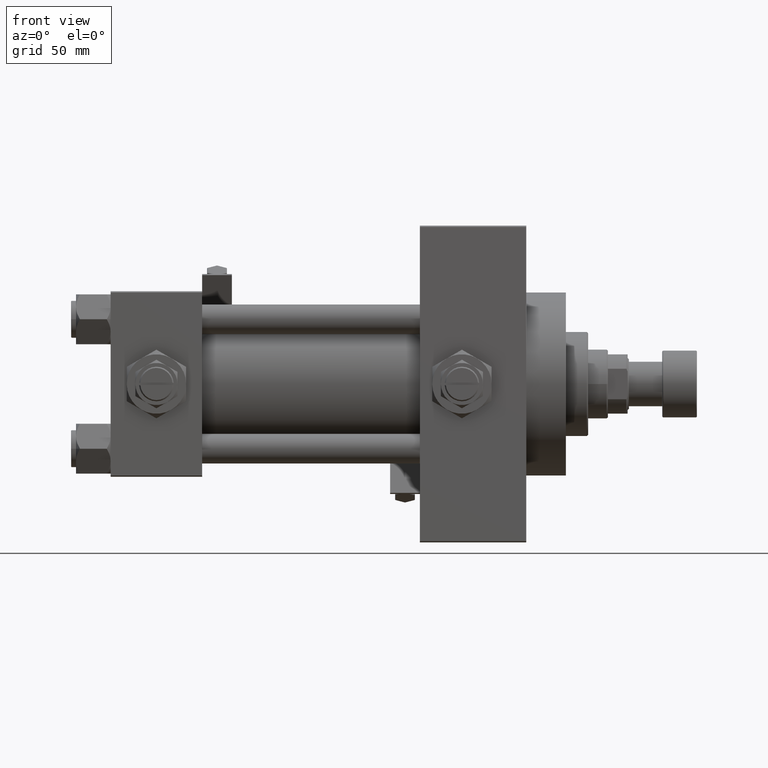
[diagram: clean part render]
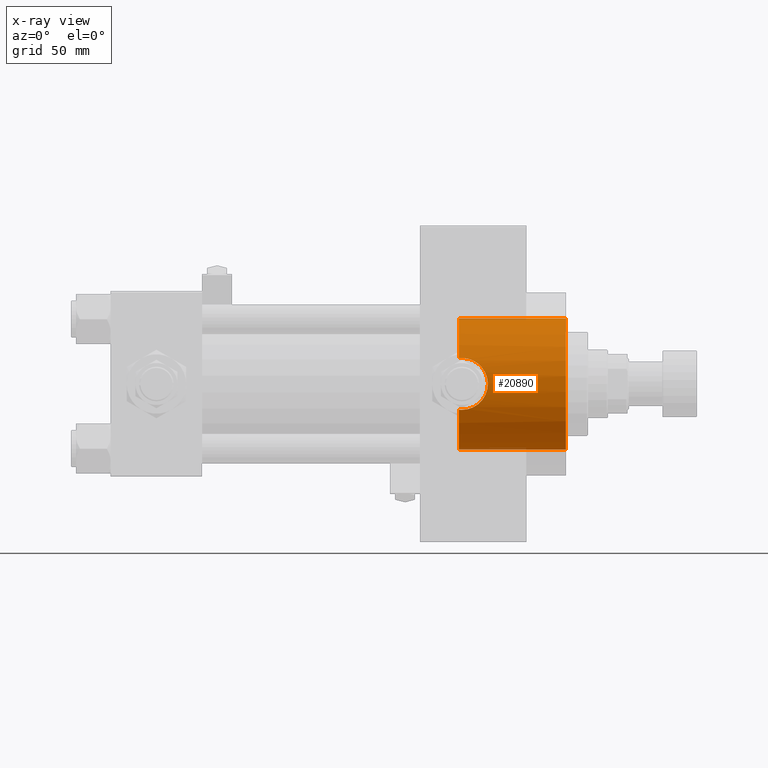
[diagram: x-ray — body ghosted, one internal face saturated and labeled with its STEP entity id]
A machine part, front view, then the same camera in x-ray: the body is ghosted and one INTERNAL B-rep face — a face not visible from any outside direction — is saturated and labeled: STEP entity #20890.
In plain terms, the highlighted cylindrical surface (partial cylindrical patch) has radius 26.5 mm, axis along (1, 0, 0).
Its self-contained STEP definition (entity closure, byte-faithful):
#257 = CARTESIAN_POINT ( 'NONE',  ( 142.0000000000000284, -24.33967132070604933, -10.47999999999998444 ) ) ;
#329 = EDGE_CURVE ( 'NONE', #25554, #23006, #44118, .T. ) ;
#688 = DIRECTION ( 'NONE',  ( 1.000000000000000000, -0.000000000000000000, -0.000000000000000000 ) ) ;
#800 = CARTESIAN_POINT ( 'NONE',  ( 146.6659000583122463, -24.77500862834707362, 9.408993987884874954 ) ) ;
#1060 = CARTESIAN_POINT ( 'NONE',  ( 142.0000000000000284, -24.33967132070604933, -10.47999999999998444 ) ) ;
#1813 = CARTESIAN_POINT ( 'NONE',  ( 152.1219222710722647, -26.36027543327035261, 2.738055544399092600 ) ) ;
#2851 = CARTESIAN_POINT ( 'NONE',  ( 141.5796744023297435, -24.33967132070604933, 10.47999999999998799 ) ) ;
#4635 = CARTESIAN_POINT ( 'NONE',  ( 148.9147507852791819, -25.30155050139244111, 7.882476147205575323 ) ) ;
#4726 = VERTEX_POINT ( 'NONE', #48244 ) ;
#4827 = DIRECTION ( 'NONE',  ( 0.000000000000000000, 0.000000000000000000, -1.000000000000000000 ) ) ;
#5080 = DIRECTION ( 'NONE',  ( 1.000000000000000000, -0.000000000000000000, -0.000000000000000000 ) ) ;
#5156 = CARTESIAN_POINT ( 'NONE',  ( 151.9389570606565769, -26.28956209411558476, -3.395175965175881938 ) ) ;
#5412 = CARTESIAN_POINT ( 'NONE',  ( 149.8811664359166400, -25.58300917221410486, -6.916171625962123315 ) ) ;
#5668 = CARTESIAN_POINT ( 'NONE',  ( 152.2075249541715039, -26.39335609204158573, 2.399236127628234794 ) ) ;
#6583 = ORIENTED_EDGE ( 'NONE', *, *, #10904, .T. ) ;
#7193 = CARTESIAN_POINT ( 'NONE',  ( 140.7400000000000091, -24.37226292324946542, -10.40398000767012299 ) ) ;
#7199 = CARTESIAN_POINT ( 'NONE',  ( 142.0000000000000284, -24.33967132070604933, 10.47999999999998799 ) ) ;
#7488 = EDGE_CURVE ( 'NONE', #38708, #10820, #20479, .T. ) ;
#7574 = AXIS2_PLACEMENT_3D ( 'NONE', #43929, #48037, #24921 ) ;
#8509 = CARTESIAN_POINT ( 'NONE',  ( 150.8904987776702171, -25.91192981801192730, 5.559420023815748735 ) ) ;
#8708 = CARTESIAN_POINT ( 'NONE',  ( 140.7400000000000091, 3.245314017740486554E-15, 26.50000000000000355 ) ) ;
#8760 = CARTESIAN_POINT ( 'NONE',  ( 149.6501220615577097, -25.51256335955728005, -7.170912732211439433 ) ) ;
#9017 = CARTESIAN_POINT ( 'NONE',  ( 142.0000000000000284, -24.33967132070604933, 10.47999999999998799 ) ) ;
#9162 = CARTESIAN_POINT ( 'NONE',  ( 140.7400000000000091, 0.000000000000000000, -26.50000000000000355 ) ) ;
#10397 = EDGE_CURVE ( 'NONE', #38708, #45404, #33424, .T. ) ;
#10820 = VERTEX_POINT ( 'NONE', #9162 ) ;
#10904 = EDGE_CURVE ( 'NONE', #25554, #16499, #16359, .T. ) ;
#11921 = EDGE_CURVE ( 'NONE', #30896, #23006, #21272, .T. ) ;
#12560 = CARTESIAN_POINT ( 'NONE',  ( 140.7400000000000091, 0.000000000000000000, 0.000000000000000000 ) ) ;
#12629 = CARTESIAN_POINT ( 'NONE',  ( 144.7286532048194374, -24.48994387988090438, 10.12445329003760008 ) ) ;
#12875 = CARTESIAN_POINT ( 'NONE',  ( 152.3421836049516855, -26.44572692659851754, -1.728475508984261610 ) ) ;
#13626 = CARTESIAN_POINT ( 'NONE',  ( 152.3935590552674171, -26.46591511510092332, -1.387412420731378715 ) ) ;
#13657 = DIRECTION ( 'NONE',  ( 1.000000000000000000, 0.000000000000000000, 0.000000000000000000 ) ) ;
#16121 = EDGE_CURVE ( 'NONE', #16499, #4726, #19058, .T. ) ;
#16359 = LINE ( 'NONE', #43589, #28789 ) ;
#16403 = FACE_OUTER_BOUND ( 'NONE', #21635, .T. ) ;
#16469 = CARTESIAN_POINT ( 'NONE',  ( 151.4057128516256228, -26.09263577897064224, -4.673612418766440513 ) ) ;
#16499 = VERTEX_POINT ( 'NONE', #19969 ) ;
#16729 = CARTESIAN_POINT ( 'NONE',  ( 152.1391112229687792, -26.36675217432884466, -2.738755341944245636 ) ) ;
#17226 = CARTESIAN_POINT ( 'NONE',  ( 151.0816778311289568, -25.97633853132261450, -5.273786452924785983 ) ) ;
#17477 = CARTESIAN_POINT ( 'NONE',  ( 147.5577538920436496, -24.96463143003449758, -8.891425016462831010 ) ) ;
#17614 = VECTOR ( 'NONE', #5080, 1000.000000000000000 ) ;
#18151 = ORIENTED_EDGE ( 'NONE', *, *, #32071, .T. ) ;
#18970 = DIRECTION ( 'NONE',  ( 1.000000000000000000, 0.000000000000000000, 0.000000000000000000 ) ) ;
#19058 = CIRCLE ( 'NONE', #7574, 26.50000000000000355 ) ;
#19221 = CARTESIAN_POINT ( 'NONE',  ( 140.7400000000000091, 0.000000000000000000, 0.000000000000000000 ) ) ;
#19755 = CARTESIAN_POINT ( 'NONE',  ( 141.5811236364006049, -24.33967132070604933, -10.47999999999998444 ) ) ;
#19969 = CARTESIAN_POINT ( 'NONE',  ( 184.0000000000000000, 3.245314017740486554E-15, 26.50000000000000355 ) ) ;
#20305 = CARTESIAN_POINT ( 'NONE',  ( 152.4798633477533940, -26.49994595790487750, 0.6963870350870441372 ) ) ;
#20479 = CIRCLE ( 'NONE', #31981, 26.50000000000000355 ) ;
#20557 = CARTESIAN_POINT ( 'NONE',  ( 143.3839948142214951, -24.36973996242157980, 10.41091756284551728 ) ) ;
#20822 = CARTESIAN_POINT ( 'NONE',  ( 151.8022638174866472, -26.23907308479209988, 3.723318718764343949 ) ) ;
#20890 = ADVANCED_FACE ( 'NONE', ( #16403 ), #44405, .F. ) ;
#21070 = CARTESIAN_POINT ( 'NONE',  ( 152.4626037639855838, -26.49310609510638770, -0.6963515910539429532 ) ) ;
#21272 = B_SPLINE_CURVE_WITH_KNOTS ( 'NONE', 3,
 ( #7199, #2851, #30347, #30595 ),
 .UNSPECIFIED., .F., .F.,
 ( 4, 4 ),
 ( 0.03437190755806009829, 0.03561776921873222035 ),
 .UNSPECIFIED. ) ;
#21323 = CARTESIAN_POINT ( 'NONE',  ( 147.2635990777562256, -24.90054338428140568, -9.068796382691630242 ) ) ;
#21635 = EDGE_LOOP ( 'NONE', ( #47859, #6583, #24468, #23697, #49711, #50085, #18151, #33705 ) ) ;
#21968 = AXIS2_PLACEMENT_3D ( 'NONE', #19221, #18970, #50072 ) ;
#23006 = VERTEX_POINT ( 'NONE', #41492 ) ;
#23697 = ORIENTED_EDGE ( 'NONE', *, *, #28615, .F. ) ;
#24114 = DIRECTION ( 'NONE',  ( 1.000000000000000000, -0.000000000000000000, -0.000000000000000000 ) ) ;
#24427 = CARTESIAN_POINT ( 'NONE',  ( 149.8850942087586304, -25.58093385762821725, 6.936447548980003042 ) ) ;
#24468 = ORIENTED_EDGE ( 'NONE', *, *, #16121, .T. ) ;
#24921 = DIRECTION ( 'NONE',  ( 0.000000000000000000, 0.000000000000000000, -1.000000000000000000 ) ) ;
#24945 = CARTESIAN_POINT ( 'NONE',  ( 146.3489237122697659, -24.72318467201153425, -9.541179571695405315 ) ) ;
#25190 = CARTESIAN_POINT ( 'NONE',  ( 142.6904960883778131, -24.33967132070604578, -10.47999999999998622 ) ) ;
#25554 = VERTEX_POINT ( 'NONE', #8708 ) ;
#26641 = B_SPLINE_CURVE_WITH_KNOTS ( 'NONE', 3,
 ( #1060, #25190, #29042, #44471, #37012, #24945, #35999, #21323, #17477, #40618, #33154, #8760, #5412, #40859, #48062, #17226, #16469, #5156, #16729, #12875, #13626, #21070, #36509, #20305, #36766, #5668, #1813, #32903, #20822, #39847, #43704, #44214, #8509, #32649, #24427, #40101, #4635, #48569, #48317, #32406, #800, #32143, #47806, #12629, #28281, #20557, #28533, #9017 ),
 .UNSPECIFIED., .F., .F.,
 ( 4, 2, 2, 2, 2, 2, 2, 2, 2, 2, 2, 2, 2, 2, 2, 2, 2, 2, 2, 2, 2, 2, 2, 4 ),
 ( 0.001255586767787714641, 0.003325356817179755085, 0.005395126866571796180, 0.006430011891267852289, 0.007464896915963908398, 0.009534666965355952095, 0.01056955199005197438, 0.01160443701474799492, 0.01367420706413999265, 0.01574397711353198864, 0.01677886213822798664, 0.01781374716292398463, 0.01988351721231598410, 0.02091840223701198556, 0.02195328726170798356, 0.02298817228640397808, 0.02402305731109997608, 0.02609282736049197207, 0.02712771238518797007, 0.02816259740988396806, 0.03023236745927596406, 0.03126725248397199675, 0.03230213750866803291, 0.03437190755806009829 ),
 .UNSPECIFIED. ) ;
#28281 = CARTESIAN_POINT ( 'NONE',  ( 144.3947302122628287, -24.45488967133339386, 10.20851256290625741 ) ) ;
#28533 = CARTESIAN_POINT ( 'NONE',  ( 142.6982936874238703, -24.33967132070605288, 10.47999999999998799 ) ) ;
#28615 = EDGE_CURVE ( 'NONE', #10820, #4726, #37193, .T. ) ;
#28789 = VECTOR ( 'NONE', #688, 1000.000000000000000 ) ;
#28820 = CARTESIAN_POINT ( 'NONE',  ( 140.7400000000000091, 0.000000000000000000, 0.000000000000000000 ) ) ;
#29042 = CARTESIAN_POINT ( 'NONE',  ( 143.3786097457406470, -24.36915941385105100, -10.41231194222668321 ) ) ;
#30347 = CARTESIAN_POINT ( 'NONE',  ( 141.1580741051582493, -24.35064928096444703, 10.45461191700780645 ) ) ;
#30595 = CARTESIAN_POINT ( 'NONE',  ( 140.7400000000000091, -24.37226292324946186, 10.40398000767012654 ) ) ;
#30896 = VERTEX_POINT ( 'NONE', #46233 ) ;
#31981 = AXIS2_PLACEMENT_3D ( 'NONE', #28820, #13657, #41145 ) ;
#32071 = EDGE_CURVE ( 'NONE', #45404, #30896, #26641, .T. ) ;
#32143 = CARTESIAN_POINT ( 'NONE',  ( 145.7173844672076655, -24.61993612039166024, 9.804529592362708712 ) ) ;
#32406 = CARTESIAN_POINT ( 'NONE',  ( 147.2636119660473923, -24.89625137302611080, 9.087734872939162045 ) ) ;
#32649 = CARTESIAN_POINT ( 'NONE',  ( 150.3165002292777501, -25.71874665637611912, 6.413821170274206729 ) ) ;
#32903 = CARTESIAN_POINT ( 'NONE',  ( 151.9191483855533988, -26.28308039691835774, 3.400110870430087306 ) ) ;
#33154 = CARTESIAN_POINT ( 'NONE',  ( 148.9276451403627561, -25.30216499957183984, -7.893159106980509598 ) ) ;
#33335 = CARTESIAN_POINT ( 'NONE',  ( 140.7400000000000091, 0.000000000000000000, -26.50000000000000355 ) ) ;
#33424 = B_SPLINE_CURVE_WITH_KNOTS ( 'NONE', 3,
 ( #7193, #39294, #19755, #257 ),
 .UNSPECIFIED., .F., .F.,
 ( 4, 4 ),
 ( 0.000000000000000000, 0.001255586767787714641 ),
 .UNSPECIFIED. ) ;
#33705 = ORIENTED_EDGE ( 'NONE', *, *, #11921, .T. ) ;
#34634 = CARTESIAN_POINT ( 'NONE',  ( 140.7400000000000091, -24.37226292324946542, -10.40398000767012299 ) ) ;
#35999 = CARTESIAN_POINT ( 'NONE',  ( 146.6580558779860723, -24.77960996754317691, -9.394203453174519325 ) ) ;
#36299 = AXIS2_PLACEMENT_3D ( 'NONE', #12560, #24114, #4827 ) ;
#36509 = CARTESIAN_POINT ( 'NONE',  ( 152.4800680225664280, -26.50002690099940494, -0.3451042088078350445 ) ) ;
#36766 = CARTESIAN_POINT ( 'NONE',  ( 152.4114040688937735, -26.47265107862980926, 1.382412405478187001 ) ) ;
#37012 = CARTESIAN_POINT ( 'NONE',  ( 145.4024368383432204, -24.56844862672226881, -9.935854460437951730 ) ) ;
#37193 = LINE ( 'NONE', #33335, #17614 ) ;
#37517 = CARTESIAN_POINT ( 'NONE',  ( 142.0000000000000284, -24.33967132070604933, -10.47999999999998444 ) ) ;
#38708 = VERTEX_POINT ( 'NONE', #34634 ) ;
#39294 = CARTESIAN_POINT ( 'NONE',  ( 141.1611364518797984, -24.35049096341793273, -10.45498279016080012 ) ) ;
#39847 = CARTESIAN_POINT ( 'NONE',  ( 151.5385175848663266, -26.14168889184969657, 4.354785931857517056 ) ) ;
#40101 = CARTESIAN_POINT ( 'NONE',  ( 149.1663633815065850, -25.37171319999175623, 7.654298772871978684 ) ) ;
#40618 = CARTESIAN_POINT ( 'NONE',  ( 148.4049404352971067, -25.16229795609818609, -8.322848467437516717 ) ) ;
#40859 = CARTESIAN_POINT ( 'NONE',  ( 150.3132647636414845, -25.71940794313461254, -6.390292897823897533 ) ) ;
#41145 = DIRECTION ( 'NONE',  ( 0.000000000000000000, 0.000000000000000000, -1.000000000000000000 ) ) ;
#41492 = CARTESIAN_POINT ( 'NONE',  ( 140.7400000000000091, -24.37226292324946186, 10.40398000767012654 ) ) ;
#43589 = CARTESIAN_POINT ( 'NONE',  ( 140.7400000000000091, 3.245314017740486554E-15, 26.50000000000000355 ) ) ;
#43704 = CARTESIAN_POINT ( 'NONE',  ( 151.3916535229813576, -26.08830885934474253, 4.663043711798783519 ) ) ;
#43929 = CARTESIAN_POINT ( 'NONE',  ( 184.0000000000000000, 0.000000000000000000, 0.000000000000000000 ) ) ;
#44118 = CIRCLE ( 'NONE', #21968, 26.50000000000000355 ) ;
#44214 = CARTESIAN_POINT ( 'NONE',  ( 151.0679913760332624, -25.97354752128885025, 5.264851845784581208 ) ) ;
#44405 = CYLINDRICAL_SURFACE ( 'NONE', #36299, 26.50000000000000355 ) ;
#44471 = CARTESIAN_POINT ( 'NONE',  ( 144.7461877943154036, -24.48462605612511567, -10.13781324604277145 ) ) ;
#45404 = VERTEX_POINT ( 'NONE', #37517 ) ;
#46233 = CARTESIAN_POINT ( 'NONE',  ( 142.0000000000000284, -24.33967132070604933, 10.47999999999998799 ) ) ;
#47806 = CARTESIAN_POINT ( 'NONE',  ( 145.3904700717597223, -24.57248644795726022, 9.922439993611760656 ) ) ;
#47859 = ORIENTED_EDGE ( 'NONE', *, *, #329, .F. ) ;
#48037 = DIRECTION ( 'NONE',  ( 1.000000000000000000, 0.000000000000000000, 0.000000000000000000 ) ) ;
#48062 = CARTESIAN_POINT ( 'NONE',  ( 150.5155153844950178, -25.78569419426081311, -6.118106053452856408 ) ) ;
#48244 = CARTESIAN_POINT ( 'NONE',  ( 184.0000000000000000, 0.000000000000000000, -26.50000000000000355 ) ) ;
#48317 = CARTESIAN_POINT ( 'NONE',  ( 148.1110651716822701, -25.09360970262139645, 8.520611273842991551 ) ) ;
#48569 = CARTESIAN_POINT ( 'NONE',  ( 148.3864792908362631, -25.16230905708523480, 8.316254619809530624 ) ) ;
#49711 = ORIENTED_EDGE ( 'NONE', *, *, #7488, .F. ) ;
#50072 = DIRECTION ( 'NONE',  ( 0.000000000000000000, 0.000000000000000000, -1.000000000000000000 ) ) ;
#50085 = ORIENTED_EDGE ( 'NONE', *, *, #10397, .T. ) ;